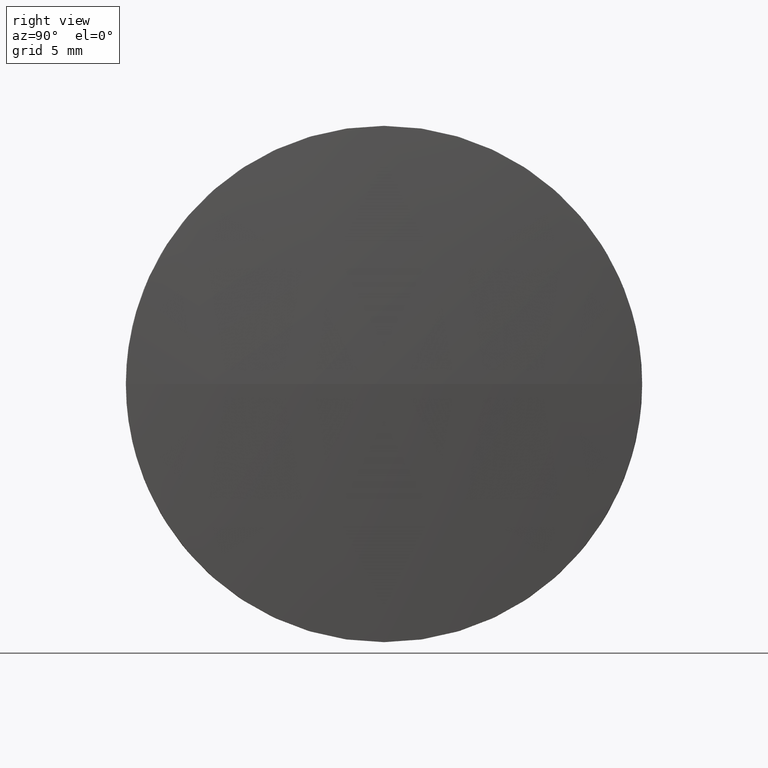
[diagram: clean part render]
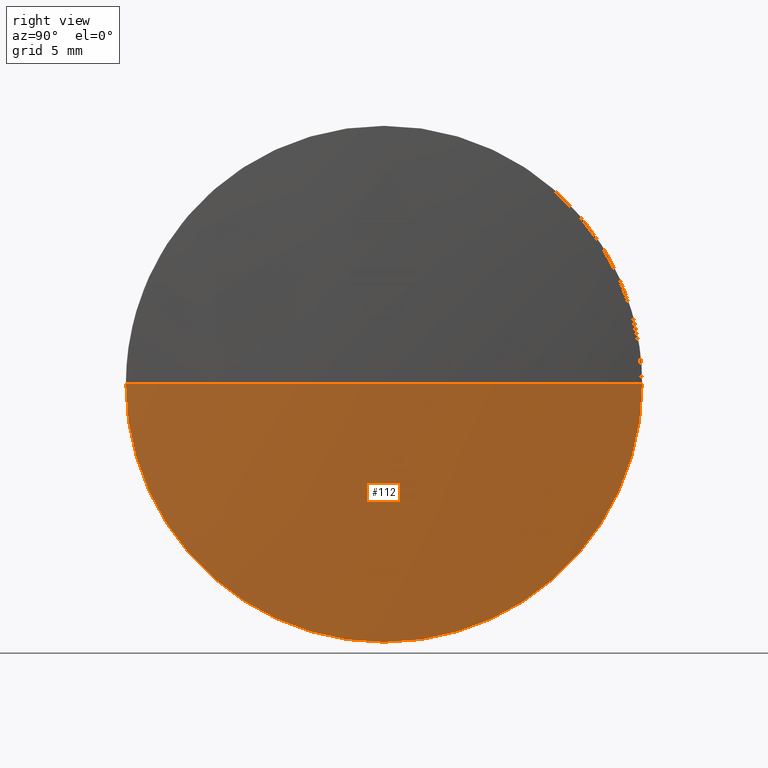
[diagram: same view with one face highlighted and labeled with its STEP entity id]
A machine part, right view. The second image highlights one B-rep face of the part: STEP entity #112.
In plain terms, the highlighted spherical surface has radius 256.8 mm.
Its self-contained STEP definition (entity closure, byte-faithful):
#9 = DIRECTION ( 'NONE',  ( -1.000000000000000000, -0.0000000000000000000, -0.0000000000000000000 ) ) ;
#23 = CARTESIAN_POINT ( 'NONE',  ( 1335.434272124735800, 431.5874298332856300, 0.0000000000000000000 ) ) ;
#31 = DIRECTION ( 'NONE',  ( 0.0000000000000000000, 1.000000000000000000, 1.224646799147353200E-016 ) ) ;
#42 = AXIS2_PLACEMENT_3D ( 'NONE', #125, #54, #52 ) ;
#45 = DIRECTION ( 'NONE',  ( 0.0000000000000000000, 1.000000000000000000, 0.0000000000000000000 ) ) ;
#46 = DIRECTION ( 'NONE',  ( -0.0000000000000000000, 0.0000000000000000000, -1.000000000000000000 ) ) ;
#47 = ORIENTED_EDGE ( 'NONE', *, *, #169, .F. ) ;
#52 = DIRECTION ( 'NONE',  ( 0.0000000000000000000, 0.0000000000000000000, 1.000000000000000000 ) ) ;
#54 = DIRECTION ( 'NONE',  ( -1.000000000000000000, -0.0000000000000000000, -0.0000000000000000000 ) ) ;
#60 = VERTEX_POINT ( 'NONE', #109 ) ;
#63 = CARTESIAN_POINT ( 'NONE',  ( 1079.414015714479800, 411.5874298332847200, 0.0000000000000000000 ) ) ;
#72 = AXIS2_PLACEMENT_3D ( 'NONE', #184, #9, #152 ) ;
#75 = ORIENTED_EDGE ( 'NONE', *, *, #160, .F. ) ;
#76 = AXIS2_PLACEMENT_3D ( 'NONE', #63, #119, #182 ) ;
#78 = SPHERICAL_SURFACE ( 'NONE', #156, 256.8002564102561100 ) ;
#79 = CARTESIAN_POINT ( 'NONE',  ( 1335.434272124735800, 391.5874298332850600, -2.449293598294665500E-015 ) ) ;
#80 = CIRCLE ( 'NONE', #42, 19.99999999999996100 ) ;
#86 = EDGE_CURVE ( 'NONE', #104, #135, #80, .T. ) ;
#93 = ORIENTED_EDGE ( 'NONE', *, *, #86, .F. ) ;
#104 = VERTEX_POINT ( 'NONE', #23 ) ;
#106 = FACE_OUTER_BOUND ( 'NONE', #183, .T. ) ;
#107 = CARTESIAN_POINT ( 'NONE',  ( 1079.414015714479800, 411.5874298332847200, 0.0000000000000000000 ) ) ;
#109 = CARTESIAN_POINT ( 'NONE',  ( 1336.214272124735800, 411.5874298332847200, 0.0000000000000000000 ) ) ;
#110 = ORIENTED_EDGE ( 'NONE', *, *, #117, .T. ) ;
#112 = ADVANCED_FACE ( 'NONE', ( #106 ), #78, .T. ) ;
#117 = EDGE_CURVE ( 'NONE', #60, #177, #157, .T. ) ;
#119 = DIRECTION ( 'NONE',  ( -0.0000000000000000000, 0.0000000000000000000, 1.000000000000000000 ) ) ;
#121 = DIRECTION ( 'NONE',  ( 0.0000000000000000000, 1.224646799147353200E-016, -1.000000000000000000 ) ) ;
#125 = CARTESIAN_POINT ( 'NONE',  ( 1335.434272124735800, 411.5874298332859700, 0.0000000000000000000 ) ) ;
#135 = VERTEX_POINT ( 'NONE', #154 ) ;
#145 = AXIS2_PLACEMENT_3D ( 'NONE', #165, #121, #31 ) ;
#152 = DIRECTION ( 'NONE',  ( 0.0000000000000000000, 0.0000000000000000000, 1.000000000000000000 ) ) ;
#153 = CIRCLE ( 'NONE', #76, 256.8002564102560500 ) ;
#154 = CARTESIAN_POINT ( 'NONE',  ( 1335.434272124735800, 411.5874298332859700, -19.99999999999996100 ) ) ;
#156 = AXIS2_PLACEMENT_3D ( 'NONE', #107, #46, #45 ) ;
#157 = CIRCLE ( 'NONE', #145, 256.8002564102561100 ) ;
#160 = EDGE_CURVE ( 'NONE', #60, #104, #153, .T. ) ;
#165 = CARTESIAN_POINT ( 'NONE',  ( 1079.414015714479800, 411.5874298332847200, 0.0000000000000000000 ) ) ;
#169 = EDGE_CURVE ( 'NONE', #135, #177, #176, .T. ) ;
#176 = CIRCLE ( 'NONE', #72, 19.99999999999996100 ) ;
#177 = VERTEX_POINT ( 'NONE', #79 ) ;
#182 = DIRECTION ( 'NONE',  ( 1.000000000000000000, 0.0000000000000000000, 0.0000000000000000000 ) ) ;
#183 = EDGE_LOOP ( 'NONE', ( #75, #110, #47, #93 ) ) ;
#184 = CARTESIAN_POINT ( 'NONE',  ( 1335.434272124735800, 411.5874298332859700, 0.0000000000000000000 ) ) ;